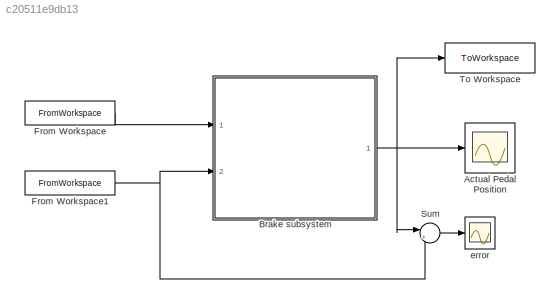
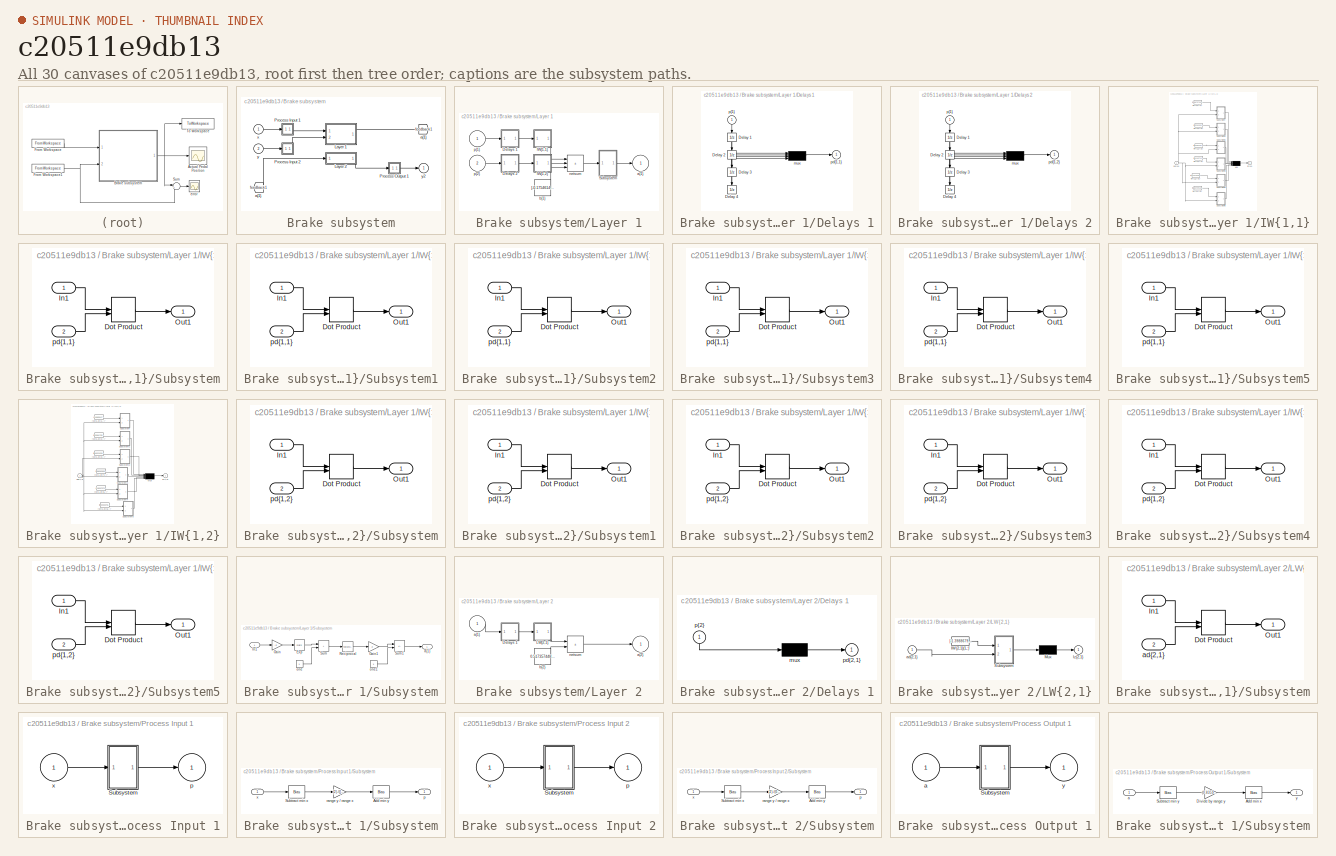
[diagram: thumbnail index - all 30 canvases of the model, root first then tree order]
MODEL slx_c20511e9db13
KIND model
CONFIG AbsTol = auto
CONFIG EnableMultiTasking = off
CONFIG FixedStep = auto
CONFIG MaxStep = auto
CONFIG MinStep = auto
CONFIG RelTol = 1e-3
CONFIG SampleTimeConstraint = Unconstrained
CONFIG SolverName = VariableStepAuto
CONFIG StartTime = 0.0
CONFIG StopTime = 25.0
BLOCK [Scope] Actual Pedal Position
  Floating = off
  NumInputPorts = 1
  Ports = [1]
  ScopeSpecificationString = Simulink.scopes.TimeScopeBlockCfg('CurrentConfiguration', extmgr.ConfigurationSet(extmgr.Configuration('Core','General UI',true),extmgr.Configuration('Core','Source UI',true),extmgr.Configuration('Sources','WiredSimulink',true),extmgr.Configuration('Visuals','Time Domain',true,'SerializedDisplays',{struct('MinYLimReal','-0.07834','MaxYLimReal','1.28724','YLabelReal','','MinYLimMag','0.00000','MaxY...<+1335ch>
BLOCK [SubSystem] Brake subsystem
  Ports = [2, 1]
  RequestExecContextInheritance = off
BLOCK [From] Brake subsystem/ a{1} 
  GotoTag = feedback1
BLOCK [SubSystem] Brake subsystem/Layer 1
  Ports = [2, 1]
  RequestExecContextInheritance = off
BLOCK [SubSystem] Brake subsystem/Layer 1/Delays 1
  Ports = [1, 1]
  RequestExecContextInheritance = off
BLOCK [UnitDelay] Brake subsystem/Layer 1/Delays 1/Delay 1
  InitialCondition = pi_input_1_delayed_1
  NameLocation = left
  SampleTime = -1
BLOCK [UnitDelay] Brake subsystem/Layer 1/Delays 1/Delay 2
  InitialCondition = pi_input_1_delayed_2
  NameLocation = left
  SampleTime = -1
BLOCK [UnitDelay] Brake subsystem/Layer 1/Delays 1/Delay 3
  InitialCondition = pi_input_1_delayed_3
  NameLocation = left
  SampleTime = -1
BLOCK [UnitDelay] Brake subsystem/Layer 1/Delays 1/Delay 4
  InitialCondition = pi_input_1_delayed_4
  NameLocation = left
  SampleTime = -1
BLOCK [Mux] Brake subsystem/Layer 1/Delays 1/mux
  Ports = [4, 1]
BLOCK [Outport] Brake subsystem/Layer 1/Delays 1/pd{1,1}
BLOCK [Inport] Brake subsystem/Layer 1/Delays 1/p{1}
  NameLocation = left
  PortDimensions = 4
BLOCK [SubSystem] Brake subsystem/Layer 1/Delays 2
  Ports = [1, 1]
  RequestExecContextInheritance = off
BLOCK [UnitDelay] Brake subsystem/Layer 1/Delays 2/Delay 1
  InitialCondition = pi_input_2_delayed_1
  NameLocation = left
  SampleTime = -1
BLOCK [UnitDelay] Brake subsystem/Layer 1/Delays 2/Delay 2
  InitialCondition = pi_input_2_delayed_2
  NameLocation = left
  SampleTime = -1
BLOCK [UnitDelay] Brake subsystem/Layer 1/Delays 2/Delay 3
  InitialCondition = pi_input_2_delayed_3
  NameLocation = left
  SampleTime = -1
BLOCK [UnitDelay] Brake subsystem/Layer 1/Delays 2/Delay 4
  InitialCondition = pi_input_2_delayed_4
  NameLocation = left
  SampleTime = -1
BLOCK [Mux] Brake subsystem/Layer 1/Delays 2/mux
  Ports = [4, 1]
BLOCK [Outport] Brake subsystem/Layer 1/Delays 2/pd{1,2}
BLOCK [Inport] Brake subsystem/Layer 1/Delays 2/p{1}
  NameLocation = left
  PortDimensions = 1
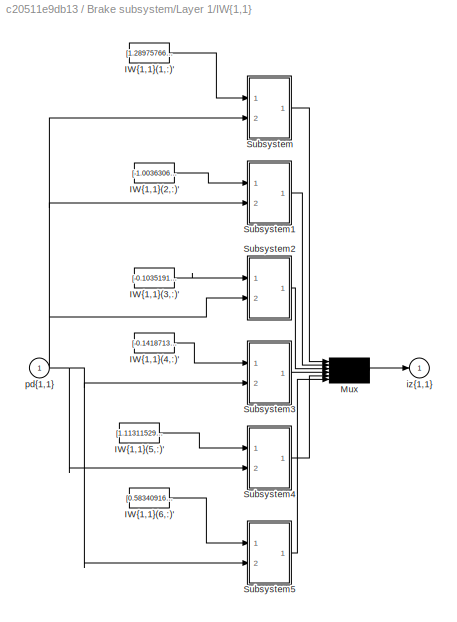
BLOCK [SubSystem] Brake subsystem/Layer 1/IW{1,1}
  Ports = [1, 1]
  RequestExecContextInheritance = off
BLOCK [Constant] Brake subsystem/Layer 1/IW{1,1}/IW{1,1}(1,:)'
  Value = [1.2897576696065213841535523897618986666202545166015625;-1.9225315294228157991796024361974559724330902099609375;-0.00402625356027518956081312495598467648960649967193603515625;-0.0988800330330607823992039584481972269713878631591796875;-0.27745355869966548123528582436847500503063201904296875;-0.12242203843162434429014950865166611038148403167724609375;0.04529979064242276726170999268106243107467889785...<+522ch>
BLOCK [Constant] Brake subsystem/Layer 1/IW{1,1}/IW{1,1}(2,:)'
  Value = [-1.003630658309852652365634639863856136798858642578125;0.338523526913924677206324531653081066906452178955078125;0.9422901927147353529079509826260618865489959716796875;-1.1446515869217623873055345029570162296295166015625;-0.343800873428868170034178319838247261941432952880859375;0.73667385246239625029573971914942376315593719482421875;1.2733273896138239678066383930854499340057373046875;-0.8700935918...<+492ch>
BLOCK [Constant] Brake subsystem/Layer 1/IW{1,1}/IW{1,1}(3,:)'
  Value = [-0.10351919842323031861752724580583162605762481689453125;-0.291936673311472161262969393646926619112491607666015625;0.342352126239464926715783121835556812584400177001953125;-0.3225497432442183676215563536970876157283782958984375;0.073595415211766823659900182974524796009063720703125;0.330315580923162432913642305720713920891284942626953125;0.2319635581233006338397473200529930181801319122314453125;-0...<+508ch>
BLOCK [Constant] Brake subsystem/Layer 1/IW{1,1}/IW{1,1}(4,:)'
  Value = [-0.141871352218838564507308319662115536630153656005859375;-0.85302991194646693440262197327683679759502410888671875;0.08385365033729719197452823209459893405437469482421875;-0.36003567776693190527481647222884930670261383056640625;0.0860344640610527233715032480176887474954128265380859375;0.67341138358948071651610689514200203120708465576171875;0.0620439414085031948342674468221957795321941375732421875...<+510ch>
BLOCK [Constant] Brake subsystem/Layer 1/IW{1,1}/IW{1,1}(5,:)'
  Value = [1.113115299612319919475567076005972921848297119140625;-0.9035501960938343568585651155444793403148651123046875;-0.13889190081698143952593227368197403848171234130859375;0.433101759647144479714597764541395008563995361328125;0.16612749920642588818964213714934885501861572265625;-0.463801286601643270035566501974244602024555206298828125;-0.488628247025082840249154969569644890725612640380859375;0.3285082...<+505ch>
BLOCK [Constant] Brake subsystem/Layer 1/IW{1,1}/IW{1,1}(6,:)'
  Value = [0.58340916731774739023563824957818724215030670166015625;-1.471002313660239479986557853408157825469970703125;-0.048550598771022031308053357179232989437878131866455078125;-0.82705537176623244999262851706589572131633758544921875;0.2131262359346118018255111792313982732594013214111328125;1.0493438587754908564164679773966781795024871826171875;-0.7026456738917501443353330614627338945865631103515625;1.53...<+495ch>
BLOCK [Mux] Brake subsystem/Layer 1/IW{1,1}/Mux
  Inputs = 6
  Ports = [6, 1]
BLOCK [SubSystem] Brake subsystem/Layer 1/IW{1,1}/Subsystem
  Ports = [2, 1]
  RequestExecContextInheritance = off
BLOCK [DotProduct] Brake subsystem/Layer 1/IW{1,1}/Subsystem/Dot Product
  OutDataTypeStr = Inherit: Inherit via internal rule
BLOCK [Inport] Brake subsystem/Layer 1/IW{1,1}/Subsystem/In1
BLOCK [Outport] Brake subsystem/Layer 1/IW{1,1}/Subsystem/Out1
BLOCK [Inport] Brake subsystem/Layer 1/IW{1,1}/Subsystem/pd{1,1}
  Port = 2
BLOCK [SubSystem] Brake subsystem/Layer 1/IW{1,1}/Subsystem1
  Ports = [2, 1]
  RequestExecContextInheritance = off
BLOCK [DotProduct] Brake subsystem/Layer 1/IW{1,1}/Subsystem1/Dot Product
  OutDataTypeStr = Inherit: Inherit via internal rule
BLOCK [Inport] Brake subsystem/Layer 1/IW{1,1}/Subsystem1/In1
BLOCK [Outport] Brake subsystem/Layer 1/IW{1,1}/Subsystem1/Out1
BLOCK [Inport] Brake subsystem/Layer 1/IW{1,1}/Subsystem1/pd{1,1}
  Port = 2
BLOCK [SubSystem] Brake subsystem/Layer 1/IW{1,1}/Subsystem2
  Ports = [2, 1]
  RequestExecContextInheritance = off
BLOCK [DotProduct] Brake subsystem/Layer 1/IW{1,1}/Subsystem2/Dot Product
  OutDataTypeStr = Inherit: Inherit via internal rule
BLOCK [Inport] Brake subsystem/Layer 1/IW{1,1}/Subsystem2/In1
BLOCK [Outport] Brake subsystem/Layer 1/IW{1,1}/Subsystem2/Out1
BLOCK [Inport] Brake subsystem/Layer 1/IW{1,1}/Subsystem2/pd{1,1}
  Port = 2
BLOCK [SubSystem] Brake subsystem/Layer 1/IW{1,1}/Subsystem3
  Ports = [2, 1]
  RequestExecContextInheritance = off
BLOCK [DotProduct] Brake subsystem/Layer 1/IW{1,1}/Subsystem3/Dot Product
  OutDataTypeStr = Inherit: Inherit via internal rule
BLOCK [Inport] Brake subsystem/Layer 1/IW{1,1}/Subsystem3/In1
BLOCK [Outport] Brake subsystem/Layer 1/IW{1,1}/Subsystem3/Out1
BLOCK [Inport] Brake subsystem/Layer 1/IW{1,1}/Subsystem3/pd{1,1}
  Port = 2
BLOCK [SubSystem] Brake subsystem/Layer 1/IW{1,1}/Subsystem4
  Ports = [2, 1]
  RequestExecContextInheritance = off
BLOCK [DotProduct] Brake subsystem/Layer 1/IW{1,1}/Subsystem4/Dot Product
  OutDataTypeStr = Inherit: Inherit via internal rule
BLOCK [Inport] Brake subsystem/Layer 1/IW{1,1}/Subsystem4/In1
BLOCK [Outport] Brake subsystem/Layer 1/IW{1,1}/Subsystem4/Out1
BLOCK [Inport] Brake subsystem/Layer 1/IW{1,1}/Subsystem4/pd{1,1}
  Port = 2
BLOCK [SubSystem] Brake subsystem/Layer 1/IW{1,1}/Subsystem5
  Ports = [2, 1]
  RequestExecContextInheritance = off
BLOCK [DotProduct] Brake subsystem/Layer 1/IW{1,1}/Subsystem5/Dot Product
  OutDataTypeStr = Inherit: Inherit via internal rule
BLOCK [Inport] Brake subsystem/Layer 1/IW{1,1}/Subsystem5/In1
BLOCK [Outport] Brake subsystem/Layer 1/IW{1,1}/Subsystem5/Out1
BLOCK [Inport] Brake subsystem/Layer 1/IW{1,1}/Subsystem5/pd{1,1}
  Port = 2
BLOCK [Outport] Brake subsystem/Layer 1/IW{1,1}/iz{1,1}
BLOCK [Inport] Brake subsystem/Layer 1/IW{1,1}/pd{1,1}
  PortDimensions = 16
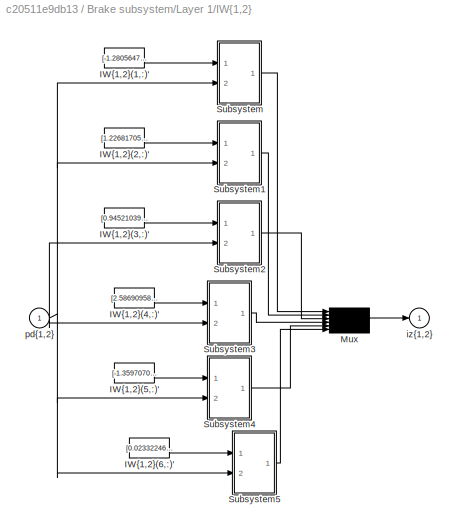
BLOCK [SubSystem] Brake subsystem/Layer 1/IW{1,2}
  Ports = [1, 1]
  RequestExecContextInheritance = off
BLOCK [Constant] Brake subsystem/Layer 1/IW{1,2}/IW{1,2}(1,:)'
  Value = [-1.2805647560202559898101526414393447339534759521484375;-0.9036662676938984617436290136538445949554443359375;1.3116465208219298954617215713369660079479217529296875;-1.4052859676147113621169637553975917398929595947265625]
BLOCK [Constant] Brake subsystem/Layer 1/IW{1,2}/IW{1,2}(2,:)'
  Value = [1.2268170593222491593365930384607054293155670166015625;-0.52351574333652439730002470241743139922618865966796875;2.65267753497795322203955947770737111568450927734375;-2.57004332534800905563088235794566571712493896484375]
BLOCK [Constant] Brake subsystem/Layer 1/IW{1,2}/IW{1,2}(3,:)'
  Value = [0.9452103994355611771283065536408685147762298583984375;-0.36696566846617206802960708955652080476284027099609375;1.036830608888795079991496095317415893077850341796875;-1.2461929722797382424914758303202688694000244140625]
BLOCK [Constant] Brake subsystem/Layer 1/IW{1,2}/IW{1,2}(4,:)'
  Value = [2.58690958361750578120563659467734396457672119140625;0.05243374299671281490997643004448036663234233856201171875;1.5982070701513848565156195036252029240131378173828125;-2.25582669569761318228984237066470086574554443359375]
BLOCK [Constant] Brake subsystem/Layer 1/IW{1,2}/IW{1,2}(5,:)'
  Value = [-1.359707035850025391710005351342260837554931640625;-0.61556878643991763677689732503495179116725921630859375;-0.577309152811082970657707846839912235736846923828125;0.6164466862102335742434888743446208536624908447265625]
BLOCK [Constant] Brake subsystem/Layer 1/IW{1,2}/IW{1,2}(6,:)'
  Value = [0.02332246640720410379987725946193677373230457305908203125;-1.4878855971233146959775694995187222957611083984375;0.71583171766138053992989398466306738555431365966796875;-0.1776705066679158395714921425678767263889312744140625]
BLOCK [Mux] Brake subsystem/Layer 1/IW{1,2}/Mux
  Inputs = 6
  Ports = [6, 1]
BLOCK [SubSystem] Brake subsystem/Layer 1/IW{1,2}/Subsystem
  Ports = [2, 1]
  RequestExecContextInheritance = off
BLOCK [DotProduct] Brake subsystem/Layer 1/IW{1,2}/Subsystem/Dot Product
  OutDataTypeStr = Inherit: Inherit via internal rule
BLOCK [Inport] Brake subsystem/Layer 1/IW{1,2}/Subsystem/In1
BLOCK [Outport] Brake subsystem/Layer 1/IW{1,2}/Subsystem/Out1
BLOCK [Inport] Brake subsystem/Layer 1/IW{1,2}/Subsystem/pd{1,2}
  Port = 2
BLOCK [SubSystem] Brake subsystem/Layer 1/IW{1,2}/Subsystem1
  Ports = [2, 1]
  RequestExecContextInheritance = off
BLOCK [DotProduct] Brake subsystem/Layer 1/IW{1,2}/Subsystem1/Dot Product
  OutDataTypeStr = Inherit: Inherit via internal rule
BLOCK [Inport] Brake subsystem/Layer 1/IW{1,2}/Subsystem1/In1
BLOCK [Outport] Brake subsystem/Layer 1/IW{1,2}/Subsystem1/Out1
BLOCK [Inport] Brake subsystem/Layer 1/IW{1,2}/Subsystem1/pd{1,2}
  Port = 2
BLOCK [SubSystem] Brake subsystem/Layer 1/IW{1,2}/Subsystem2
  Ports = [2, 1]
  RequestExecContextInheritance = off
BLOCK [DotProduct] Brake subsystem/Layer 1/IW{1,2}/Subsystem2/Dot Product
  OutDataTypeStr = Inherit: Inherit via internal rule
BLOCK [Inport] Brake subsystem/Layer 1/IW{1,2}/Subsystem2/In1
BLOCK [Outport] Brake subsystem/Layer 1/IW{1,2}/Subsystem2/Out1
BLOCK [Inport] Brake subsystem/Layer 1/IW{1,2}/Subsystem2/pd{1,2}
  Port = 2
BLOCK [SubSystem] Brake subsystem/Layer 1/IW{1,2}/Subsystem3
  Ports = [2, 1]
  RequestExecContextInheritance = off
BLOCK [DotProduct] Brake subsystem/Layer 1/IW{1,2}/Subsystem3/Dot Product
  OutDataTypeStr = Inherit: Inherit via internal rule
BLOCK [Inport] Brake subsystem/Layer 1/IW{1,2}/Subsystem3/In1
BLOCK [Outport] Brake subsystem/Layer 1/IW{1,2}/Subsystem3/Out1
BLOCK [Inport] Brake subsystem/Layer 1/IW{1,2}/Subsystem3/pd{1,2}
  Port = 2
BLOCK [SubSystem] Brake subsystem/Layer 1/IW{1,2}/Subsystem4
  Ports = [2, 1]
  RequestExecContextInheritance = off
BLOCK [DotProduct] Brake subsystem/Layer 1/IW{1,2}/Subsystem4/Dot Product
  OutDataTypeStr = Inherit: Inherit via internal rule
BLOCK [Inport] Brake subsystem/Layer 1/IW{1,2}/Subsystem4/In1
BLOCK [Outport] Brake subsystem/Layer 1/IW{1,2}/Subsystem4/Out1
BLOCK [Inport] Brake subsystem/Layer 1/IW{1,2}/Subsystem4/pd{1,2}
  Port = 2
BLOCK [SubSystem] Brake subsystem/Layer 1/IW{1,2}/Subsystem5
  Ports = [2, 1]
  RequestExecContextInheritance = off
BLOCK [DotProduct] Brake subsystem/Layer 1/IW{1,2}/Subsystem5/Dot Product
  OutDataTypeStr = Inherit: Inherit via internal rule
BLOCK [Inport] Brake subsystem/Layer 1/IW{1,2}/Subsystem5/In1
BLOCK [Outport] Brake subsystem/Layer 1/IW{1,2}/Subsystem5/Out1
BLOCK [Inport] Brake subsystem/Layer 1/IW{1,2}/Subsystem5/pd{1,2}
  Port = 2
BLOCK [Outport] Brake subsystem/Layer 1/IW{1,2}/iz{1,2}
BLOCK [Inport] Brake subsystem/Layer 1/IW{1,2}/pd{1,2}
  PortDimensions = 4
BLOCK [SubSystem] Brake subsystem/Layer 1/Subsystem
  Ports = [1, 1]
  RequestExecContextInheritance = off
BLOCK [Math] Brake subsystem/Layer 1/Subsystem/Exp
  Ports = [1, 1]
  SignedPower = on
BLOCK [Gain] Brake subsystem/Layer 1/Subsystem/Gain
  Gain = -2
  OutDataTypeStr = Inherit: Same as input
  ParamDataTypeStr = Inherit: Same as input
  SaturateOnIntegerOverflow = on
BLOCK [Gain] Brake subsystem/Layer 1/Subsystem/Gain1
  Gain = 2
  OutDataTypeStr = Inherit: Same as input
  ParamDataTypeStr = Inherit: Same as input
  SaturateOnIntegerOverflow = on
BLOCK [Inport] Brake subsystem/Layer 1/Subsystem/In1
BLOCK [Math] Brake subsystem/Layer 1/Subsystem/Reciprocal
  Operator = reciprocal
  Ports = [1, 1]
  SignedPower = on
BLOCK [Sum] Brake subsystem/Layer 1/Subsystem/Sum
  IconShape = rectangular
  InputSameDT = on
  OutDataTypeStr = Inherit: Same as first input
  Ports = [2, 1]
  SaturateOnIntegerOverflow = on
BLOCK [Sum] Brake subsystem/Layer 1/Subsystem/Sum1
  IconShape = rectangular
  InputSameDT = on
  Inputs = +-
  OutDataTypeStr = Inherit: Same as first input
  Ports = [2, 1]
  SaturateOnIntegerOverflow = on
BLOCK [Outport] Brake subsystem/Layer 1/Subsystem/a{1}
BLOCK [Constant] Brake subsystem/Layer 1/Subsystem/one
BLOCK [Constant] Brake subsystem/Layer 1/Subsystem/one1
BLOCK [Outport] Brake subsystem/Layer 1/a{1}
  InitialOutput = [0;0;0;0;0;0]
BLOCK [Constant] Brake subsystem/Layer 1/b{1}
  Value = [-0.1754614981831461861805365742839057929813861846923828125;0.1568951812336805973213671450139372609555721282958984375;0.092589380084686812022454205362009815871715545654296875;-0.08827103518596403353146939707585261203348636627197265625;-0.1366947078190251796403487105635576881468296051025390625;-1.6956623977816700499232638321700505912303924560546875]
BLOCK [Sum] Brake subsystem/Layer 1/netsum
  IconShape = rectangular
  InputSameDT = on
  Inputs = 3
  OutDataTypeStr = Inherit: Same as first input
  Ports = [3, 1]
  SaturateOnIntegerOverflow = on
BLOCK [Inport] Brake subsystem/Layer 1/p{1}
  PortDimensions = 4
BLOCK [Inport] Brake subsystem/Layer 1/p{2}
  Port = 2
  PortDimensions = 1
BLOCK [SubSystem] Brake subsystem/Layer 2
  Ports = [1, 1]
  RequestExecContextInheritance = off
BLOCK [SubSystem] Brake subsystem/Layer 2/Delays 1
  Ports = [1, 1]
  RequestExecContextInheritance = off
BLOCK [Mux] Brake subsystem/Layer 2/Delays 1/mux
  Inputs = 1
  Ports = [1, 1]
BLOCK [Outport] Brake subsystem/Layer 2/Delays 1/pd{2,1}
BLOCK [Inport] Brake subsystem/Layer 2/Delays 1/p{2}
  NameLocation = left
  PortDimensions = 6
BLOCK [SubSystem] Brake subsystem/Layer 2/LW{2,1}
  Ports = [1, 1]
  RequestExecContextInheritance = off
BLOCK [Constant] Brake subsystem/Layer 2/LW{2,1}/IW{2,1}(1,:)'
  Value = [-1.398867935704070308844393366598524153232574462890625;2.143929645762529645480753970332443714141845703125;-5.13675642106006336007339996285736560821533203125;2.1922784606724832201507524587213993072509765625;3.37769993167163473657410577288828790187835693359375;-0.06339503179608670102584966343783889897167682647705078125]
BLOCK [Mux] Brake subsystem/Layer 2/LW{2,1}/Mux
  Inputs = 1
  Ports = [1, 1]
BLOCK [SubSystem] Brake subsystem/Layer 2/LW{2,1}/Subsystem
  Ports = [2, 1]
  RequestExecContextInheritance = off
BLOCK [DotProduct] Brake subsystem/Layer 2/LW{2,1}/Subsystem/Dot Product
  OutDataTypeStr = Inherit: Inherit via internal rule
BLOCK [Inport] Brake subsystem/Layer 2/LW{2,1}/Subsystem/In1
BLOCK [Outport] Brake subsystem/Layer 2/LW{2,1}/Subsystem/Out1
BLOCK [Inport] Brake subsystem/Layer 2/LW{2,1}/Subsystem/ad{2,1}
  Port = 2
BLOCK [Inport] Brake subsystem/Layer 2/LW{2,1}/ad{2,1}
  PortDimensions = 6
BLOCK [Outport] Brake subsystem/Layer 2/LW{2,1}/lz{2,1}
BLOCK [Inport] Brake subsystem/Layer 2/a{1} 
  PortDimensions = 6
BLOCK [Outport] Brake subsystem/Layer 2/a{2}
  InitialOutput = 0
BLOCK [Constant] Brake subsystem/Layer 2/b{2}
  Value = 0.51735744833768204653523525848868303000926971435546875
BLOCK [Sum] Brake subsystem/Layer 2/netsum
  IconShape = rectangular
  InputSameDT = on
  Inputs = 2
  OutDataTypeStr = Inherit: Same as first input
  Ports = [2, 1]
  SaturateOnIntegerOverflow = on
BLOCK [SubSystem] Brake subsystem/Process Input 1
  Ports = [1, 1]
  RequestExecContextInheritance = off
BLOCK [SubSystem] Brake subsystem/Process Input 1/Subsystem
  Ports = [1, 1]
  RequestExecContextInheritance = off
BLOCK [Bias] Brake subsystem/Process Input 1/Subsystem/Add min y
  Bias = -1
  SaturateOnIntegerOverflow = off
BLOCK [Bias] Brake subsystem/Process Input 1/Subsystem/Subtract min x
  Bias = -[0.964999999999999968913755310496;3.31800000000000006039613253961;0.493999999999999994670929481799;0.476999999999999979571896346897]
  SaturateOnIntegerOverflow = off
BLOCK [Outport] Brake subsystem/Process Input 1/Subsystem/p
BLOCK [Gain] Brake subsystem/Process Input 1/Subsystem/range y // range x
  Gain = (2)./([1.74700000000000010835776720342;4.0929999999999999715782905696;1.08600000000000007638334409421;1.08099999999999996092014953319]-[0.964999999999999968913755310496;3.31800000000000006039613253961;0.493999999999999994670929481799;0.476999999999999979571896346897])
BLOCK [Inport] Brake subsystem/Process Input 1/Subsystem/x
BLOCK [Outport] Brake subsystem/Process Input 1/p
  PortDimensions = 4
BLOCK [Inport] Brake subsystem/Process Input 1/x
  PortDimensions = 4
BLOCK [SubSystem] Brake subsystem/Process Input 2
  Ports = [1, 1]
  RequestExecContextInheritance = off
BLOCK [SubSystem] Brake subsystem/Process Input 2/Subsystem
  Ports = [1, 1]
  RequestExecContextInheritance = off
BLOCK [Bias] Brake subsystem/Process Input 2/Subsystem/Add min y
  Bias = -1
  SaturateOnIntegerOverflow = off
BLOCK [Bias] Brake subsystem/Process Input 2/Subsystem/Subtract min x
  Bias = -0
  SaturateOnIntegerOverflow = off
BLOCK [Outport] Brake subsystem/Process Input 2/Subsystem/p
BLOCK [Gain] Brake subsystem/Process Input 2/Subsystem/range y // range x
  Gain = (2)./(0.835999999999999965361041631695-0)
BLOCK [Inport] Brake subsystem/Process Input 2/Subsystem/x
BLOCK [Outport] Brake subsystem/Process Input 2/p
  PortDimensions = 1
BLOCK [Inport] Brake subsystem/Process Input 2/x
  PortDimensions = 1
BLOCK [SubSystem] Brake subsystem/Process Output 1
  Ports = [1, 1]
  RequestExecContextInheritance = off
BLOCK [SubSystem] Brake subsystem/Process Output 1/Subsystem
  Ports = [1, 1]
  RequestExecContextInheritance = off
BLOCK [Bias] Brake subsystem/Process Output 1/Subsystem/Add min x
  SaturateOnIntegerOverflow = off
BLOCK [Gain] Brake subsystem/Process Output 1/Subsystem/Divide by range y
  Gain = (0.835999999999999965361041631695-0)./(2)
BLOCK [Bias] Brake subsystem/Process Output 1/Subsystem/Subtract min y
  Bias = 1
  SaturateOnIntegerOverflow = off
BLOCK [Inport] Brake subsystem/Process Output 1/Subsystem/a
BLOCK [Outport] Brake subsystem/Process Output 1/Subsystem/y
BLOCK [Inport] Brake subsystem/Process Output 1/a
  PortDimensions = 1
BLOCK [Outport] Brake subsystem/Process Output 1/y
  PortDimensions = 1
BLOCK [Goto] Brake subsystem/a{1}
  GotoTag = feedback1
BLOCK [Inport] Brake subsystem/x
  PortDimensions = 4
BLOCK [Inport] Brake subsystem/y
  Port = 2
  PortDimensions = 1
BLOCK [Outport] Brake subsystem/y2
  InitialOutput = 0
BLOCK [FromWorkspace] From Workspace
  SampleTime = 0.033
  VariableName = sysBrakeLog1
BLOCK [FromWorkspace] From Workspace1
  SampleTime = 0.033
  VariableName = sysBrakeLog1Pedal
BLOCK [Sum] Sum
  Inputs = |+-
  Ports = [2, 1]
BLOCK [ToWorkspace] To Workspace
  FixptAsFi = on
  MaxDataPoints = inf
  Ports = [1]
  SampleTime = -1
  SaveFormat = Timeseries
  VariableName = actualpedal
BLOCK [Scope] error
  Floating = off
  NumInputPorts = 1
  Ports = [1]
  ScopeSpecificationString = Simulink.scopes.TimeScopeBlockCfg('CurrentConfiguration', extmgr.ConfigurationSet(extmgr.Configuration('Core','General UI',true),extmgr.Configuration('Core','Source UI',true),extmgr.Configuration('Sources','WiredSimulink',true,'DataLoggingVariableName','ScopeData1'),extmgr.Configuration('Visuals','Time Domain',true,'SerializedDisplays',{struct('MinYLimReal','-0.17473','MaxYLimReal','1.22954','YLab...<+1381ch>
LINE Brake subsystem/ a{1} :1 -> Brake subsystem/Layer 2:1
NET Brake subsystem/Layer 1/Delays 1/Delay 1:1 -> Brake subsystem/Layer 1/Delays 1/Delay 2:1, Brake subsystem/Layer 1/Delays 1/mux:1
NET Brake subsystem/Layer 1/Delays 1/Delay 2:1 -> Brake subsystem/Layer 1/Delays 1/Delay 3:1, Brake subsystem/Layer 1/Delays 1/mux:2
NET Brake subsystem/Layer 1/Delays 1/Delay 3:1 -> Brake subsystem/Layer 1/Delays 1/Delay 4:1, Brake subsystem/Layer 1/Delays 1/mux:3
LINE Brake subsystem/Layer 1/Delays 1/Delay 4:1 -> Brake subsystem/Layer 1/Delays 1/mux:4
LINE Brake subsystem/Layer 1/Delays 1/mux:1 -> Brake subsystem/Layer 1/Delays 1/pd{1,1}:1
LINE Brake subsystem/Layer 1/Delays 1/p{1}:1 -> Brake subsystem/Layer 1/Delays 1/Delay 1:1
LINE Brake subsystem/Layer 1/Delays 1:1 -> Brake subsystem/Layer 1/IW{1,1}:1
NET Brake subsystem/Layer 1/Delays 2/Delay 1:1 -> Brake subsystem/Layer 1/Delays 2/Delay 2:1, Brake subsystem/Layer 1/Delays 2/mux:1
NET Brake subsystem/Layer 1/Delays 2/Delay 2:1 -> Brake subsystem/Layer 1/Delays 2/Delay 3:1, Brake subsystem/Layer 1/Delays 2/mux:2
NET Brake subsystem/Layer 1/Delays 2/Delay 3:1 -> Brake subsystem/Layer 1/Delays 2/Delay 4:1, Brake subsystem/Layer 1/Delays 2/mux:3
LINE Brake subsystem/Layer 1/Delays 2/Delay 4:1 -> Brake subsystem/Layer 1/Delays 2/mux:4
LINE Brake subsystem/Layer 1/Delays 2/mux:1 -> Brake subsystem/Layer 1/Delays 2/pd{1,2}:1
LINE Brake subsystem/Layer 1/Delays 2/p{1}:1 -> Brake subsystem/Layer 1/Delays 2/Delay 1:1
LINE Brake subsystem/Layer 1/Delays 2:1 -> Brake subsystem/Layer 1/IW{1,2}:1
LINE Brake subsystem/Layer 1/IW{1,1}/IW{1,1}(1,:)':1 -> Brake subsystem/Layer 1/IW{1,1}/Subsystem:1
LINE Brake subsystem/Layer 1/IW{1,1}/IW{1,1}(2,:)':1 -> Brake subsystem/Layer 1/IW{1,1}/Subsystem1:1
LINE Brake subsystem/Layer 1/IW{1,1}/IW{1,1}(3,:)':1 -> Brake subsystem/Layer 1/IW{1,1}/Subsystem2:1
LINE Brake subsystem/Layer 1/IW{1,1}/IW{1,1}(4,:)':1 -> Brake subsystem/Layer 1/IW{1,1}/Subsystem3:1
LINE Brake subsystem/Layer 1/IW{1,1}/IW{1,1}(5,:)':1 -> Brake subsystem/Layer 1/IW{1,1}/Subsystem4:1
LINE Brake subsystem/Layer 1/IW{1,1}/IW{1,1}(6,:)':1 -> Brake subsystem/Layer 1/IW{1,1}/Subsystem5:1
LINE Brake subsystem/Layer 1/IW{1,1}/Mux:1 -> Brake subsystem/Layer 1/IW{1,1}/iz{1,1}:1
LINE Brake subsystem/Layer 1/IW{1,1}/Subsystem/Dot Product:1 -> Brake subsystem/Layer 1/IW{1,1}/Subsystem/Out1:1
LINE Brake subsystem/Layer 1/IW{1,1}/Subsystem/In1:1 -> Brake subsystem/Layer 1/IW{1,1}/Subsystem/Dot Product:1
LINE Brake subsystem/Layer 1/IW{1,1}/Subsystem/pd{1,1}:1 -> Brake subsystem/Layer 1/IW{1,1}/Subsystem/Dot Product:2
LINE Brake subsystem/Layer 1/IW{1,1}/Subsystem1/Dot Product:1 -> Brake subsystem/Layer 1/IW{1,1}/Subsystem1/Out1:1
LINE Brake subsystem/Layer 1/IW{1,1}/Subsystem1/In1:1 -> Brake subsystem/Layer 1/IW{1,1}/Subsystem1/Dot Product:1
LINE Brake subsystem/Layer 1/IW{1,1}/Subsystem1/pd{1,1}:1 -> Brake subsystem/Layer 1/IW{1,1}/Subsystem1/Dot Product:2
LINE Brake subsystem/Layer 1/IW{1,1}/Subsystem1:1 -> Brake subsystem/Layer 1/IW{1,1}/Mux:2
LINE Brake subsystem/Layer 1/IW{1,1}/Subsystem2/Dot Product:1 -> Brake subsystem/Layer 1/IW{1,1}/Subsystem2/Out1:1
LINE Brake subsystem/Layer 1/IW{1,1}/Subsystem2/In1:1 -> Brake subsystem/Layer 1/IW{1,1}/Subsystem2/Dot Product:1
LINE Brake subsystem/Layer 1/IW{1,1}/Subsystem2/pd{1,1}:1 -> Brake subsystem/Layer 1/IW{1,1}/Subsystem2/Dot Product:2
LINE Brake subsystem/Layer 1/IW{1,1}/Subsystem2:1 -> Brake subsystem/Layer 1/IW{1,1}/Mux:3
LINE Brake subsystem/Layer 1/IW{1,1}/Subsystem3/Dot Product:1 -> Brake subsystem/Layer 1/IW{1,1}/Subsystem3/Out1:1
LINE Brake subsystem/Layer 1/IW{1,1}/Subsystem3/In1:1 -> Brake subsystem/Layer 1/IW{1,1}/Subsystem3/Dot Product:1
LINE Brake subsystem/Layer 1/IW{1,1}/Subsystem3/pd{1,1}:1 -> Brake subsystem/Layer 1/IW{1,1}/Subsystem3/Dot Product:2
LINE Brake subsystem/Layer 1/IW{1,1}/Subsystem3:1 -> Brake subsystem/Layer 1/IW{1,1}/Mux:4
LINE Brake subsystem/Layer 1/IW{1,1}/Subsystem4/Dot Product:1 -> Brake subsystem/Layer 1/IW{1,1}/Subsystem4/Out1:1
LINE Brake subsystem/Layer 1/IW{1,1}/Subsystem4/In1:1 -> Brake subsystem/Layer 1/IW{1,1}/Subsystem4/Dot Product:1
LINE Brake subsystem/Layer 1/IW{1,1}/Subsystem4/pd{1,1}:1 -> Brake subsystem/Layer 1/IW{1,1}/Subsystem4/Dot Product:2
LINE Brake subsystem/Layer 1/IW{1,1}/Subsystem4:1 -> Brake subsystem/Layer 1/IW{1,1}/Mux:5
LINE Brake subsystem/Layer 1/IW{1,1}/Subsystem5/Dot Product:1 -> Brake subsystem/Layer 1/IW{1,1}/Subsystem5/Out1:1
LINE Brake subsystem/Layer 1/IW{1,1}/Subsystem5/In1:1 -> Brake subsystem/Layer 1/IW{1,1}/Subsystem5/Dot Product:1
LINE Brake subsystem/Layer 1/IW{1,1}/Subsystem5/pd{1,1}:1 -> Brake subsystem/Layer 1/IW{1,1}/Subsystem5/Dot Product:2
LINE Brake subsystem/Layer 1/IW{1,1}/Subsystem5:1 -> Brake subsystem/Layer 1/IW{1,1}/Mux:6
LINE Brake subsystem/Layer 1/IW{1,1}/Subsystem:1 -> Brake subsystem/Layer 1/IW{1,1}/Mux:1
NET Brake subsystem/Layer 1/IW{1,1}/pd{1,1}:1 -> Brake subsystem/Layer 1/IW{1,1}/Subsystem1:2, Brake subsystem/Layer 1/IW{1,1}/Subsystem2:2, Brake subsystem/Layer 1/IW{1,1}/Subsystem3:2, Brake subsystem/Layer 1/IW{1,1}/Subsystem4:2, Brake subsystem/Layer 1/IW{1,1}/Subsystem5:2, Brake subsystem/Layer 1/IW{1,1}/Subsystem:2
LINE Brake subsystem/Layer 1/IW{1,1}:1 -> Brake subsystem/Layer 1/netsum:1
LINE Brake subsystem/Layer 1/IW{1,2}/IW{1,2}(1,:)':1 -> Brake subsystem/Layer 1/IW{1,2}/Subsystem:1
LINE Brake subsystem/Layer 1/IW{1,2}/IW{1,2}(2,:)':1 -> Brake subsystem/Layer 1/IW{1,2}/Subsystem1:1
LINE Brake subsystem/Layer 1/IW{1,2}/IW{1,2}(3,:)':1 -> Brake subsystem/Layer 1/IW{1,2}/Subsystem2:1
LINE Brake subsystem/Layer 1/IW{1,2}/IW{1,2}(4,:)':1 -> Brake subsystem/Layer 1/IW{1,2}/Subsystem3:1
LINE Brake subsystem/Layer 1/IW{1,2}/IW{1,2}(5,:)':1 -> Brake subsystem/Layer 1/IW{1,2}/Subsystem4:1
LINE Brake subsystem/Layer 1/IW{1,2}/IW{1,2}(6,:)':1 -> Brake subsystem/Layer 1/IW{1,2}/Subsystem5:1
LINE Brake subsystem/Layer 1/IW{1,2}/Mux:1 -> Brake subsystem/Layer 1/IW{1,2}/iz{1,2}:1
LINE Brake subsystem/Layer 1/IW{1,2}/Subsystem/Dot Product:1 -> Brake subsystem/Layer 1/IW{1,2}/Subsystem/Out1:1
LINE Brake subsystem/Layer 1/IW{1,2}/Subsystem/In1:1 -> Brake subsystem/Layer 1/IW{1,2}/Subsystem/Dot Product:1
LINE Brake subsystem/Layer 1/IW{1,2}/Subsystem/pd{1,2}:1 -> Brake subsystem/Layer 1/IW{1,2}/Subsystem/Dot Product:2
LINE Brake subsystem/Layer 1/IW{1,2}/Subsystem1/Dot Product:1 -> Brake subsystem/Layer 1/IW{1,2}/Subsystem1/Out1:1
LINE Brake subsystem/Layer 1/IW{1,2}/Subsystem1/In1:1 -> Brake subsystem/Layer 1/IW{1,2}/Subsystem1/Dot Product:1
LINE Brake subsystem/Layer 1/IW{1,2}/Subsystem1/pd{1,2}:1 -> Brake subsystem/Layer 1/IW{1,2}/Subsystem1/Dot Product:2
LINE Brake subsystem/Layer 1/IW{1,2}/Subsystem1:1 -> Brake subsystem/Layer 1/IW{1,2}/Mux:2
LINE Brake subsystem/Layer 1/IW{1,2}/Subsystem2/Dot Product:1 -> Brake subsystem/Layer 1/IW{1,2}/Subsystem2/Out1:1
LINE Brake subsystem/Layer 1/IW{1,2}/Subsystem2/In1:1 -> Brake subsystem/Layer 1/IW{1,2}/Subsystem2/Dot Product:1
LINE Brake subsystem/Layer 1/IW{1,2}/Subsystem2/pd{1,2}:1 -> Brake subsystem/Layer 1/IW{1,2}/Subsystem2/Dot Product:2
LINE Brake subsystem/Layer 1/IW{1,2}/Subsystem2:1 -> Brake subsystem/Layer 1/IW{1,2}/Mux:3
LINE Brake subsystem/Layer 1/IW{1,2}/Subsystem3/Dot Product:1 -> Brake subsystem/Layer 1/IW{1,2}/Subsystem3/Out1:1
LINE Brake subsystem/Layer 1/IW{1,2}/Subsystem3/In1:1 -> Brake subsystem/Layer 1/IW{1,2}/Subsystem3/Dot Product:1
LINE Brake subsystem/Layer 1/IW{1,2}/Subsystem3/pd{1,2}:1 -> Brake subsystem/Layer 1/IW{1,2}/Subsystem3/Dot Product:2
LINE Brake subsystem/Layer 1/IW{1,2}/Subsystem3:1 -> Brake subsystem/Layer 1/IW{1,2}/Mux:4
LINE Brake subsystem/Layer 1/IW{1,2}/Subsystem4/Dot Product:1 -> Brake subsystem/Layer 1/IW{1,2}/Subsystem4/Out1:1
LINE Brake subsystem/Layer 1/IW{1,2}/Subsystem4/In1:1 -> Brake subsystem/Layer 1/IW{1,2}/Subsystem4/Dot Product:1
LINE Brake subsystem/Layer 1/IW{1,2}/Subsystem4/pd{1,2}:1 -> Brake subsystem/Layer 1/IW{1,2}/Subsystem4/Dot Product:2
LINE Brake subsystem/Layer 1/IW{1,2}/Subsystem4:1 -> Brake subsystem/Layer 1/IW{1,2}/Mux:5
LINE Brake subsystem/Layer 1/IW{1,2}/Subsystem5/Dot Product:1 -> Brake subsystem/Layer 1/IW{1,2}/Subsystem5/Out1:1
LINE Brake subsystem/Layer 1/IW{1,2}/Subsystem5/In1:1 -> Brake subsystem/Layer 1/IW{1,2}/Subsystem5/Dot Product:1
LINE Brake subsystem/Layer 1/IW{1,2}/Subsystem5/pd{1,2}:1 -> Brake subsystem/Layer 1/IW{1,2}/Subsystem5/Dot Product:2
LINE Brake subsystem/Layer 1/IW{1,2}/Subsystem5:1 -> Brake subsystem/Layer 1/IW{1,2}/Mux:6
LINE Brake subsystem/Layer 1/IW{1,2}/Subsystem:1 -> Brake subsystem/Layer 1/IW{1,2}/Mux:1
NET Brake subsystem/Layer 1/IW{1,2}/pd{1,2}:1 -> Brake subsystem/Layer 1/IW{1,2}/Subsystem1:2, Brake subsystem/Layer 1/IW{1,2}/Subsystem2:2, Brake subsystem/Layer 1/IW{1,2}/Subsystem3:2, Brake subsystem/Layer 1/IW{1,2}/Subsystem4:2, Brake subsystem/Layer 1/IW{1,2}/Subsystem5:2, Brake subsystem/Layer 1/IW{1,2}/Subsystem:2
LINE Brake subsystem/Layer 1/IW{1,2}:1 -> Brake subsystem/Layer 1/netsum:2
LINE Brake subsystem/Layer 1/Subsystem/Exp:1 -> Brake subsystem/Layer 1/Subsystem/Sum:1
LINE Brake subsystem/Layer 1/Subsystem/Gain1:1 -> Brake subsystem/Layer 1/Subsystem/Sum1:1
LINE Brake subsystem/Layer 1/Subsystem/Gain:1 -> Brake subsystem/Layer 1/Subsystem/Exp:1
LINE Brake subsystem/Layer 1/Subsystem/In1:1 -> Brake subsystem/Layer 1/Subsystem/Gain:1
LINE Brake subsystem/Layer 1/Subsystem/Reciprocal:1 -> Brake subsystem/Layer 1/Subsystem/Gain1:1
LINE Brake subsystem/Layer 1/Subsystem/Sum1:1 -> Brake subsystem/Layer 1/Subsystem/a{1}:1
LINE Brake subsystem/Layer 1/Subsystem/Sum:1 -> Brake subsystem/Layer 1/Subsystem/Reciprocal:1
LINE Brake subsystem/Layer 1/Subsystem/one1:1 -> Brake subsystem/Layer 1/Subsystem/Sum1:2
LINE Brake subsystem/Layer 1/Subsystem/one:1 -> Brake subsystem/Layer 1/Subsystem/Sum:2
LINE Brake subsystem/Layer 1/Subsystem:1 -> Brake subsystem/Layer 1/a{1}:1
LINE Brake subsystem/Layer 1/b{1}:1 -> Brake subsystem/Layer 1/netsum:3
LINE Brake subsystem/Layer 1/netsum:1 -> Brake subsystem/Layer 1/Subsystem:1
LINE Brake subsystem/Layer 1/p{1}:1 -> Brake subsystem/Layer 1/Delays 1:1
LINE Brake subsystem/Layer 1/p{2}:1 -> Brake subsystem/Layer 1/Delays 2:1
LINE Brake subsystem/Layer 1:1 -> Brake subsystem/a{1}:1
LINE Brake subsystem/Layer 2/Delays 1/mux:1 -> Brake subsystem/Layer 2/Delays 1/pd{2,1}:1
LINE Brake subsystem/Layer 2/Delays 1/p{2}:1 -> Brake subsystem/Layer 2/Delays 1/mux:1
LINE Brake subsystem/Layer 2/Delays 1:1 -> Brake subsystem/Layer 2/LW{2,1}:1
LINE Brake subsystem/Layer 2/LW{2,1}/IW{2,1}(1,:)':1 -> Brake subsystem/Layer 2/LW{2,1}/Subsystem:1
LINE Brake subsystem/Layer 2/LW{2,1}/Mux:1 -> Brake subsystem/Layer 2/LW{2,1}/lz{2,1}:1
LINE Brake subsystem/Layer 2/LW{2,1}/Subsystem/Dot Product:1 -> Brake subsystem/Layer 2/LW{2,1}/Subsystem/Out1:1
LINE Brake subsystem/Layer 2/LW{2,1}/Subsystem/In1:1 -> Brake subsystem/Layer 2/LW{2,1}/Subsystem/Dot Product:1
LINE Brake subsystem/Layer 2/LW{2,1}/Subsystem/ad{2,1}:1 -> Brake subsystem/Layer 2/LW{2,1}/Subsystem/Dot Product:2
LINE Brake subsystem/Layer 2/LW{2,1}/Subsystem:1 -> Brake subsystem/Layer 2/LW{2,1}/Mux:1
LINE Brake subsystem/Layer 2/LW{2,1}/ad{2,1}:1 -> Brake subsystem/Layer 2/LW{2,1}/Subsystem:2
LINE Brake subsystem/Layer 2/LW{2,1}:1 -> Brake subsystem/Layer 2/netsum:1
LINE Brake subsystem/Layer 2/a{1} :1 -> Brake subsystem/Layer 2/Delays 1:1
LINE Brake subsystem/Layer 2/b{2}:1 -> Brake subsystem/Layer 2/netsum:2
LINE Brake subsystem/Layer 2/netsum:1 -> Brake subsystem/Layer 2/a{2}:1
LINE Brake subsystem/Layer 2:1 -> Brake subsystem/Process Output 1:1
LINE Brake subsystem/Process Input 1/Subsystem/Add min y:1 -> Brake subsystem/Process Input 1/Subsystem/p:1
LINE Brake subsystem/Process Input 1/Subsystem/Subtract min x:1 -> Brake subsystem/Process Input 1/Subsystem/range y // range x:1
LINE Brake subsystem/Process Input 1/Subsystem/range y // range x:1 -> Brake subsystem/Process Input 1/Subsystem/Add min y:1
LINE Brake subsystem/Process Input 1/Subsystem/x:1 -> Brake subsystem/Process Input 1/Subsystem/Subtract min x:1
LINE Brake subsystem/Process Input 1/Subsystem:1 -> Brake subsystem/Process Input 1/p:1
LINE Brake subsystem/Process Input 1/x:1 -> Brake subsystem/Process Input 1/Subsystem:1
LINE Brake subsystem/Process Input 1:1 -> Brake subsystem/Layer 1:1
LINE Brake subsystem/Process Input 2/Subsystem/Add min y:1 -> Brake subsystem/Process Input 2/Subsystem/p:1
LINE Brake subsystem/Process Input 2/Subsystem/Subtract min x:1 -> Brake subsystem/Process Input 2/Subsystem/range y // range x:1
LINE Brake subsystem/Process Input 2/Subsystem/range y // range x:1 -> Brake subsystem/Process Input 2/Subsystem/Add min y:1
LINE Brake subsystem/Process Input 2/Subsystem/x:1 -> Brake subsystem/Process Input 2/Subsystem/Subtract min x:1
LINE Brake subsystem/Process Input 2/Subsystem:1 -> Brake subsystem/Process Input 2/p:1
LINE Brake subsystem/Process Input 2/x:1 -> Brake subsystem/Process Input 2/Subsystem:1
LINE Brake subsystem/Process Input 2:1 -> Brake subsystem/Layer 1:2
LINE Brake subsystem/Process Output 1/Subsystem/Add min x:1 -> Brake subsystem/Process Output 1/Subsystem/y:1
LINE Brake subsystem/Process Output 1/Subsystem/Divide by range y:1 -> Brake subsystem/Process Output 1/Subsystem/Add min x:1
LINE Brake subsystem/Process Output 1/Subsystem/Subtract min y:1 -> Brake subsystem/Process Output 1/Subsystem/Divide by range y:1
LINE Brake subsystem/Process Output 1/Subsystem/a:1 -> Brake subsystem/Process Output 1/Subsystem/Subtract min y:1
LINE Brake subsystem/Process Output 1/Subsystem:1 -> Brake subsystem/Process Output 1/y:1
LINE Brake subsystem/Process Output 1/a:1 -> Brake subsystem/Process Output 1/Subsystem:1
LINE Brake subsystem/Process Output 1:1 -> Brake subsystem/y2:1
LINE Brake subsystem/x:1 -> Brake subsystem/Process Input 1:1
LINE Brake subsystem/y:1 -> Brake subsystem/Process Input 2:1
NET Brake subsystem:1 -> Actual Pedal Position:1, Sum:1, To Workspace:1
NET From Workspace1:1 -> Brake subsystem:2, Sum:2
LINE From Workspace:1 -> Brake subsystem:1
LINE Sum:1 -> error:1
note: NET lines group one-source signal fan-out (src -> all destinations, sorted); 1:1 wires keep LINE
